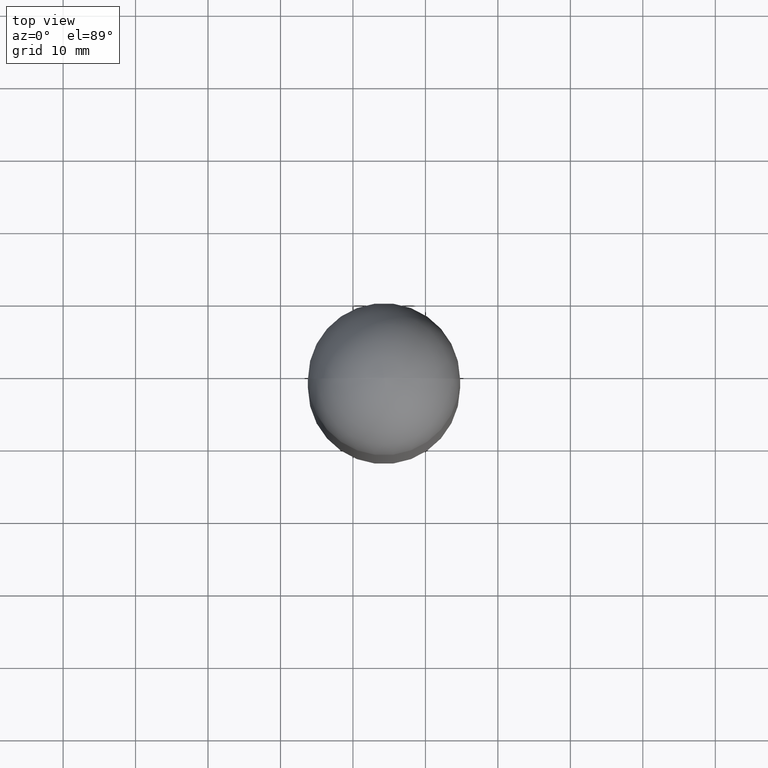
[diagram: clean part render]
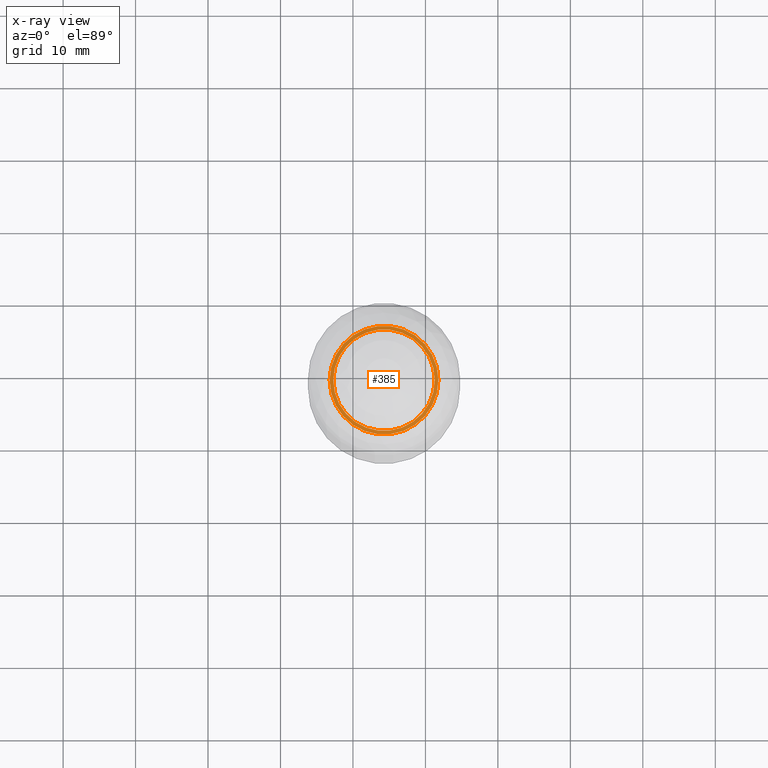
[diagram: x-ray — body ghosted, one internal face saturated and labeled with its STEP entity id]
A machine part, top view, then the same camera in x-ray: the body is ghosted and one INTERNAL B-rep face — a face not visible from any outside direction — is saturated and labeled: STEP entity #385.
In plain terms, the highlighted planar face has unit normal (0, 0, -1).
Its self-contained STEP definition (entity closure, byte-faithful):
#91=CARTESIAN_POINT('',(-2.716946060098081,-1.613904443833870,78.0));
#92=VERTEX_POINT('',#91);
#101=CARTESIAN_POINT('',(11.283053939901922,-1.613904443833870,78.0));
#102=VERTEX_POINT('',#101);
#103=CARTESIAN_POINT('',(4.283053939901920,-1.613904443833871,78.0));
#104=DIRECTION('',(0.0,0.0,1.0));
#105=DIRECTION('',(-1.0,0.0,0.0));
#106=AXIS2_PLACEMENT_3D('',#103,#104,#105);
#107=CIRCLE('',#106,7.000000000000001);
#108=EDGE_CURVE('',#92,#102,#107,.T.);
#133=CARTESIAN_POINT('',(-3.216946060098080,-1.613904443833872,78.0));
#134=VERTEX_POINT('',#133);
#143=CARTESIAN_POINT('',(11.783053939901919,-1.613904443833870,78.0));
#144=VERTEX_POINT('',#143);
#145=CARTESIAN_POINT('',(4.283053939901920,-1.613904443833871,78.0));
#146=DIRECTION('',(0.0,0.0,1.0));
#147=DIRECTION('',(-1.0,0.0,0.0));
#148=AXIS2_PLACEMENT_3D('',#145,#146,#147);
#149=CIRCLE('',#148,7.500000000000000);
#150=EDGE_CURVE('',#144,#134,#149,.T.);
#356=CARTESIAN_POINT('',(4.283053939901920,-1.613904443833871,78.0));
#357=DIRECTION('',(0.0,0.0,1.0));
#358=DIRECTION('',(-1.0,0.0,0.0));
#359=AXIS2_PLACEMENT_3D('',#356,#357,#358);
#360=CIRCLE('',#359,7.500000000000000);
#361=EDGE_CURVE('',#134,#144,#360,.T.);
#366=CARTESIAN_POINT('',(4.283053939901920,-1.613904443833871,78.0));
#367=DIRECTION('',(0.0,0.0,-1.0));
#368=DIRECTION('',(-1.0,0.0,0.0));
#369=AXIS2_PLACEMENT_3D('',#366,#367,#368);
#370=PLANE('',#369);
#371=ORIENTED_EDGE('',*,*,#150,.T.);
#372=ORIENTED_EDGE('',*,*,#361,.T.);
#373=EDGE_LOOP('',(#371,#372));
#374=FACE_OUTER_BOUND('',#373,.T.);
#375=CARTESIAN_POINT('',(4.283053939901920,-1.613904443833871,78.0));
#376=DIRECTION('',(0.0,0.0,1.0));
#377=DIRECTION('',(-1.0,0.0,0.0));
#378=AXIS2_PLACEMENT_3D('',#375,#376,#377);
#379=CIRCLE('',#378,7.000000000000001);
#380=EDGE_CURVE('',#102,#92,#379,.T.);
#381=ORIENTED_EDGE('',*,*,#380,.F.);
#382=ORIENTED_EDGE('',*,*,#108,.F.);
#383=EDGE_LOOP('',(#381,#382));
#384=FACE_BOUND('',#383,.T.);
#385=ADVANCED_FACE('',(#374,#384),#370,.F.);